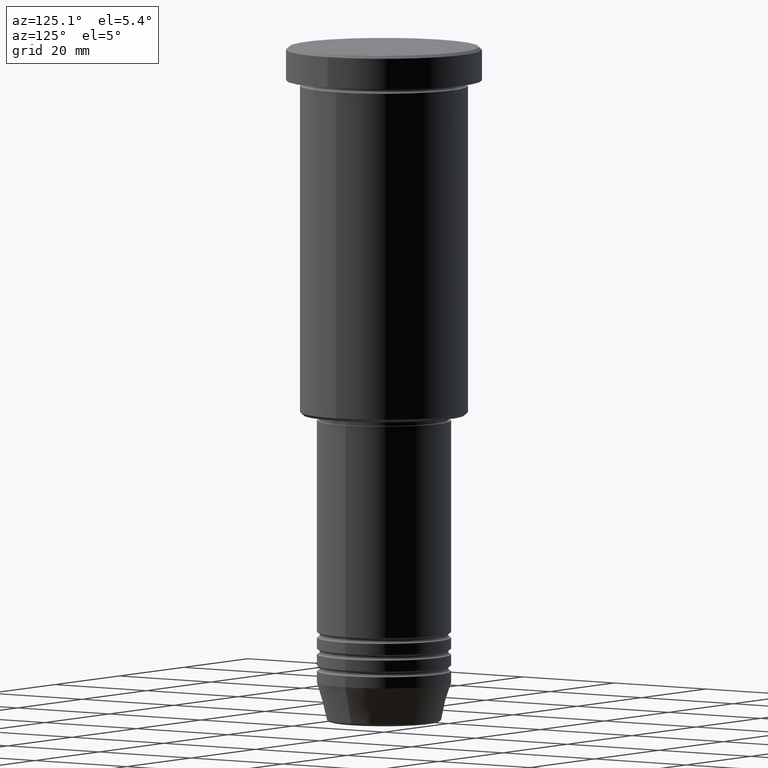
[diagram: clean part render]
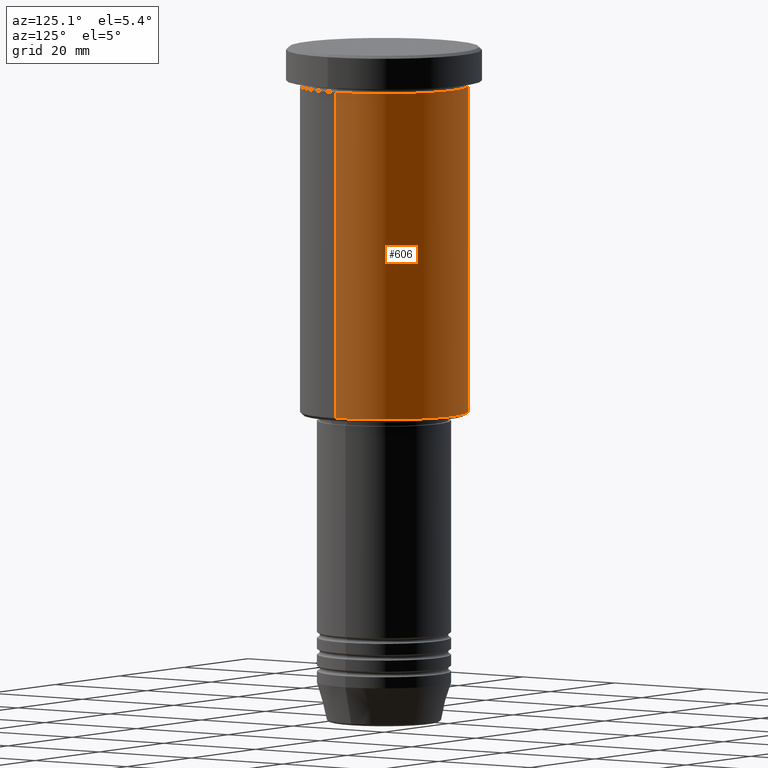
[diagram: same view with one face highlighted and labeled with its STEP entity id]
A machine part, auxiliary view. The second image highlights one B-rep face of the part: STEP entity #606.
In plain terms, the highlighted cylindrical surface (partial cylindrical patch) has radius 15 mm, axis along (-0, -0, 1).
Its self-contained STEP definition (entity closure, byte-faithful):
#18 = LINE ( 'NONE', #272, #387 ) ;
#21 = DIRECTION ( 'NONE',  ( -0.000000000000000000, -0.000000000000000000, 1.000000000000000000 ) ) ;
#22 = EDGE_CURVE ( 'NONE', #348, #586, #414, .T. ) ;
#109 = CARTESIAN_POINT ( 'NONE',  ( 0.000000000000000000, 0.000000000000000000, -65.50000000000002842 ) ) ;
#170 = CYLINDRICAL_SURFACE ( 'NONE', #966, 15.00000000000000000 ) ;
#184 = CIRCLE ( 'NONE', #485, 15.00000000000000000 ) ;
#189 = CARTESIAN_POINT ( 'NONE',  ( -15.00000000000000000, 1.836970198721029589E-15, -65.50000000000002842 ) ) ;
#192 = ORIENTED_EDGE ( 'NONE', *, *, #344, .T. ) ;
#246 = DIRECTION ( 'NONE',  ( -0.000000000000000000, -0.000000000000000000, 1.000000000000000000 ) ) ;
#256 = AXIS2_PLACEMENT_3D ( 'NONE', #109, #21, #379 ) ;
#272 = CARTESIAN_POINT ( 'NONE',  ( -15.00000000000000000, 1.836970198721029589E-15, 0.000000000000000000 ) ) ;
#307 = VERTEX_POINT ( 'NONE', #381 ) ;
#315 = CARTESIAN_POINT ( 'NONE',  ( 15.00000000000000000, 0.000000000000000000, 0.000000000000000000 ) ) ;
#343 = VECTOR ( 'NONE', #951, 1000.000000000000000 ) ;
#344 = EDGE_CURVE ( 'NONE', #762, #307, #18, .T. ) ;
#348 = VERTEX_POINT ( 'NONE', #833 ) ;
#379 = DIRECTION ( 'NONE',  ( -1.000000000000000000, 0.000000000000000000, 0.000000000000000000 ) ) ;
#381 = CARTESIAN_POINT ( 'NONE',  ( -15.00000000000000000, 1.836970198721029589E-15, -6.999999999999995559 ) ) ;
#387 = VECTOR ( 'NONE', #651, 1000.000000000000000 ) ;
#400 = EDGE_LOOP ( 'NONE', ( #908, #192, #624, #539 ) ) ;
#414 = LINE ( 'NONE', #315, #343 ) ;
#417 = DIRECTION ( 'NONE',  ( 1.000000000000000000, 0.000000000000000000, 0.000000000000000000 ) ) ;
#453 = DIRECTION ( 'NONE',  ( -0.000000000000000000, -0.000000000000000000, 1.000000000000000000 ) ) ;
#485 = AXIS2_PLACEMENT_3D ( 'NONE', #567, #453, #903 ) ;
#535 = CARTESIAN_POINT ( 'NONE',  ( 0.000000000000000000, 0.000000000000000000, 0.000000000000000000 ) ) ;
#539 = ORIENTED_EDGE ( 'NONE', *, *, #22, .F. ) ;
#567 = CARTESIAN_POINT ( 'NONE',  ( 0.000000000000000000, 0.000000000000000000, -6.999999999999995559 ) ) ;
#586 = VERTEX_POINT ( 'NONE', #1055 ) ;
#606 = ADVANCED_FACE ( 'NONE', ( #621 ), #170, .T. ) ;
#621 = FACE_OUTER_BOUND ( 'NONE', #400, .T. ) ;
#624 = ORIENTED_EDGE ( 'NONE', *, *, #867, .F. ) ;
#651 = DIRECTION ( 'NONE',  ( -0.000000000000000000, -0.000000000000000000, 1.000000000000000000 ) ) ;
#762 = VERTEX_POINT ( 'NONE', #189 ) ;
#764 = CIRCLE ( 'NONE', #256, 15.00000000000000000 ) ;
#797 = EDGE_CURVE ( 'NONE', #348, #762, #764, .T. ) ;
#833 = CARTESIAN_POINT ( 'NONE',  ( 15.00000000000000000, 0.000000000000000000, -65.50000000000002842 ) ) ;
#867 = EDGE_CURVE ( 'NONE', #586, #307, #184, .T. ) ;
#903 = DIRECTION ( 'NONE',  ( 1.000000000000000000, 0.000000000000000000, 0.000000000000000000 ) ) ;
#908 = ORIENTED_EDGE ( 'NONE', *, *, #797, .T. ) ;
#951 = DIRECTION ( 'NONE',  ( -0.000000000000000000, -0.000000000000000000, 1.000000000000000000 ) ) ;
#966 = AXIS2_PLACEMENT_3D ( 'NONE', #535, #246, #417 ) ;
#1055 = CARTESIAN_POINT ( 'NONE',  ( 15.00000000000000000, 0.000000000000000000, -6.999999999999995559 ) ) ;